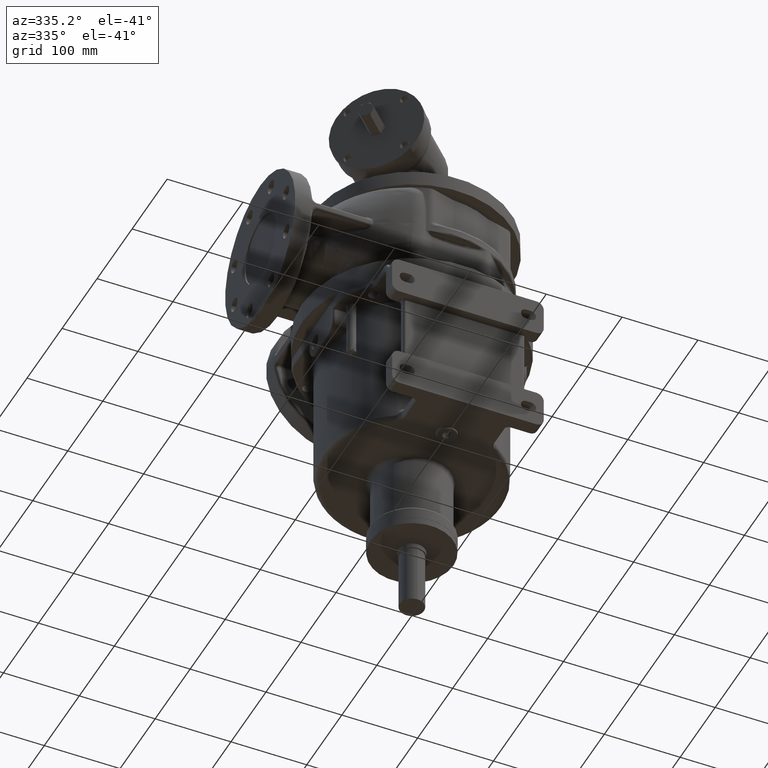
[diagram: clean part render]
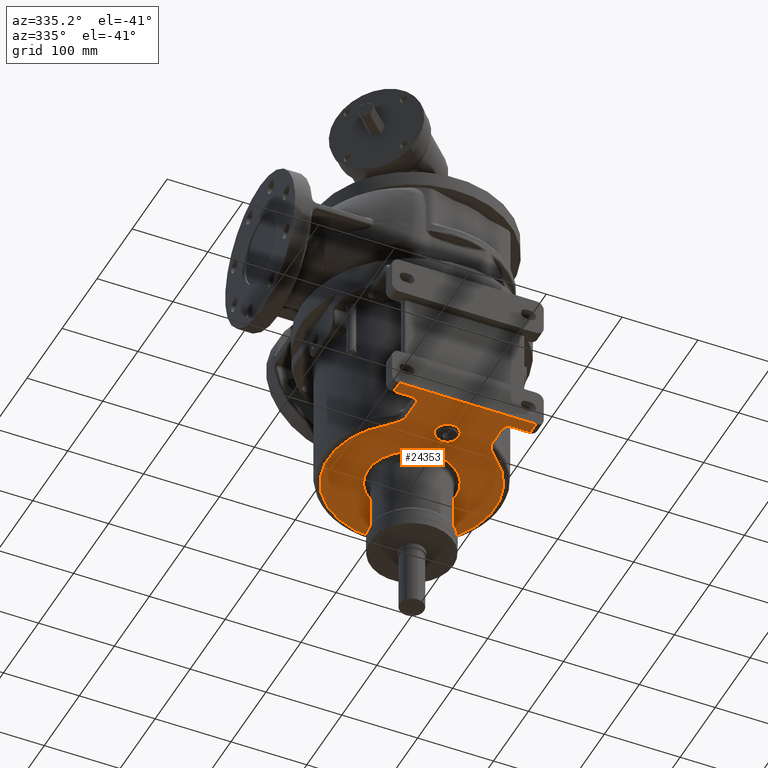
[diagram: same view with one face highlighted and labeled with its STEP entity id]
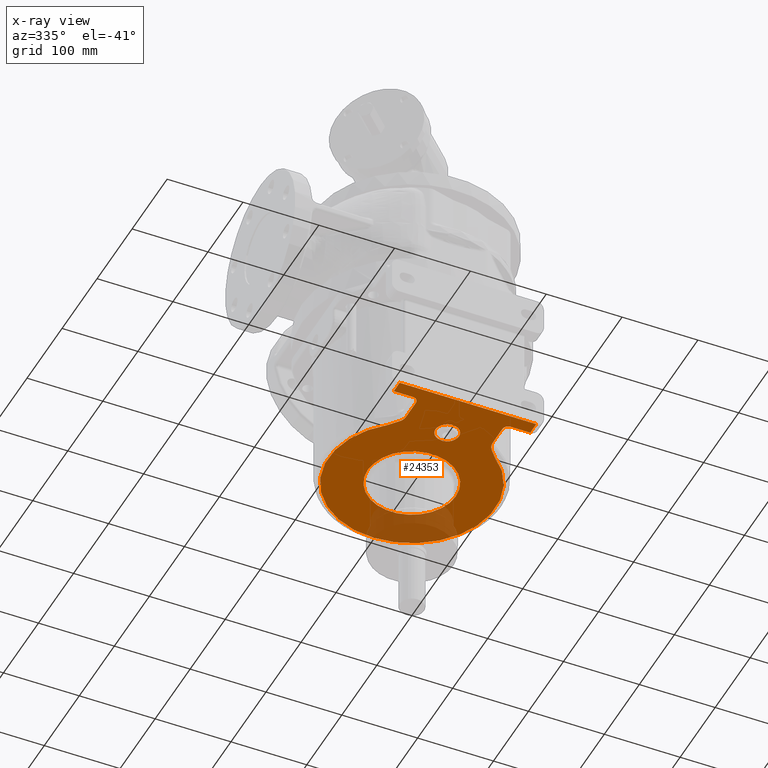
[diagram: x-ray of the same camera — body ghosted, the highlighted face saturated]
A machine part, auxiliary view. The second image highlights one B-rep face of the part: STEP entity #24353.
The next image is the same camera in x-ray: the body ghosted, the highlighted face saturated — about 16% of this face is hidden behind the body in this view.
In plain terms, the highlighted planar face has unit normal (0, 0, 1).
Its self-contained STEP definition (entity closure, byte-faithful):
#2231=DIRECTION('',(1.E0,0.E0,0.E0));
#2232=VECTOR('',#2231,1.8E2);
#2233=CARTESIAN_POINT('',(-9.E1,-1.6E2,-2.02E2));
#2234=LINE('',#2233,#2232);
#2235=DIRECTION('',(-2.423034322205E-10,1.E0,0.E0));
#2236=VECTOR('',#2235,1.7E1);
#2237=CARTESIAN_POINT('',(9.E1,-1.6E2,-2.02E2));
#2238=LINE('',#2237,#2236);
#2239=DIRECTION('',(-1.E0,1.539535787623E-10,0.E0));
#2240=VECTOR('',#2239,2.500000000194E1);
#2241=CARTESIAN_POINT('',(8.999999999588E1,-1.43E2,-2.02E2));
#2242=LINE('',#2241,#2240);
#2243=CARTESIAN_POINT('',(6.5E1,-1.35E2,-2.02E2));
#2244=DIRECTION('',(0.E0,0.E0,-1.E0));
#2245=DIRECTION('',(0.E0,-1.E0,0.E0));
#2246=AXIS2_PLACEMENT_3D('',#2243,#2244,#2245);
#2248=DIRECTION('',(3.636277230981E-6,9.999999999927E-1,-1.212321577035E-6));
#2249=VECTOR('',#2248,2.868402105599E1);
#2250=CARTESIAN_POINT('',(5.700000000442E1,-1.350000000036E2,-2.02E2));
#2251=LINE('',#2250,#2249);
#2252=CARTESIAN_POINT('',(5.700010430747E1,-1.063159789478E2,
-2.020000347743E2));
#2253=CARTESIAN_POINT('',(5.700011993886E1,-1.061453591144E2,
-2.020000335700E2));
#2254=CARTESIAN_POINT('',(5.700617352310E1,-1.058023319013E2,
-2.019999844201E2));
#2255=CARTESIAN_POINT('',(5.703364062839E1,-1.052822404566E2,
-2.020000041746E2));
#2256=CARTESIAN_POINT('',(5.707986210337E1,-1.047571623152E2,
-2.019999988814E2));
#2257=CARTESIAN_POINT('',(5.714523460756E1,-1.042275291597E2,
-2.020000002997E2));
#2258=CARTESIAN_POINT('',(5.723009956223E1,-1.036937041633E2,
-2.019999999197E2));
#2259=CARTESIAN_POINT('',(5.733480331146E1,-1.031562921447E2,
-2.020000000215E2));
#2260=CARTESIAN_POINT('',(5.745980936689E1,-1.026149629147E2,
-2.019999999942E2));
#2261=CARTESIAN_POINT('',(5.760581700418E1,-1.020688297422E2,
-2.020000000015E2));
#2262=CARTESIAN_POINT('',(5.777368037089E1,-1.015172010061E2,
-2.019999999996E2));
#2263=CARTESIAN_POINT('',(5.796442687882E1,-1.009589345012E2,
-2.020000000001E2));
#2264=CARTESIAN_POINT('',(5.817923094654E1,-1.003932822558E2,-2.02E2));
#2265=CARTESIAN_POINT('',(5.841989657052E1,-9.981795925638E1,-2.02E2));
#2266=CARTESIAN_POINT('',(5.868845266406E1,-9.923105506610E1,-2.02E2));
#2267=CARTESIAN_POINT('',(5.898794399636E1,-9.862908625308E1,-2.02E2));
#2268=CARTESIAN_POINT('',(5.932180327641E1,-9.800873562648E1,-2.02E2));
#2269=CARTESIAN_POINT('',(5.969555152827E1,-9.736381168616E1,-2.02E2));
#2270=CARTESIAN_POINT('',(6.011585776283E1,-9.668748108034E1,-2.02E2));
#2271=CARTESIAN_POINT('',(6.059504237619E1,-9.596571006542E1,-2.02E2));
#2272=CARTESIAN_POINT('',(6.114926788676E1,-9.518157213787E1,-2.02E2));
#2273=CARTESIAN_POINT('',(6.180122059410E1,-9.431200181416E1,
-2.020000000002E2));
#2274=CARTESIAN_POINT('',(6.256938027780E1,-9.334156816361E1,
-2.019999999994E2));
#2275=CARTESIAN_POINT('',(6.346629197464E1,-9.226044347160E1,
-2.020000000021E2));
#2276=CARTESIAN_POINT('',(6.449599954291E1,-9.106455592005E1,
-2.019999999921E2));
#2277=CARTESIAN_POINT('',(6.565472461914E1,-8.975173254466E1,
-2.020000000295E2));
#2278=CARTESIAN_POINT('',(6.694771363868E1,-8.830508794484E1,
-2.019999998900E2));
#2279=CARTESIAN_POINT('',(6.837528954856E1,-8.670612249582E1,
-2.020000004104E2));
#2280=CARTESIAN_POINT('',(6.944331484875E1,-8.549480547857E1,
-2.019999991158E2));
#2281=CARTESIAN_POINT('',(7.000000410274E1,-8.485280705635E1,
-2.020000004968E2));
#2283=CARTESIAN_POINT('',(-7.000002259154E1,-8.485281968794E1,
-2.020000009870E2));
#2284=CARTESIAN_POINT('',(-6.942965693859E1,-8.551003120332E1,
-2.019999723100E2));
#2285=CARTESIAN_POINT('',(-6.833978969608E1,-8.674635578249E1,
-2.020000128510E2));
#2286=CARTESIAN_POINT('',(-6.689344931588E1,-8.836557354126E1,
-2.019999965566E2));
#2287=CARTESIAN_POINT('',(-6.559764849402E1,-8.981593379553E1,
-2.020000009227E2));
#2288=CARTESIAN_POINT('',(-6.444084210241E1,-9.112761620003E1,
-2.019999997528E2));
#2289=CARTESIAN_POINT('',(-6.341555423201E1,-9.232047051287E1,
-2.020000000662E2));
#2290=CARTESIAN_POINT('',(-6.252360452966E1,-9.339807013015E1,
-2.019999999822E2));
#2291=CARTESIAN_POINT('',(-6.176004369639E1,-9.436545171514E1,
-2.020000000048E2));
#2292=CARTESIAN_POINT('',(-6.111572583416E1,-9.522774685480E1,
-2.019999999987E2));
#2293=CARTESIAN_POINT('',(-6.056788084352E1,-9.600549358539E1,
-2.020000000003E2));
#2294=CARTESIAN_POINT('',(-6.009395592453E1,-9.672169900228E1,
-2.019999999999E2));
#2295=CARTESIAN_POINT('',(-5.967691170425E1,-9.739494598834E1,-2.02E2));
#2296=CARTESIAN_POINT('',(-5.930629187301E1,-9.803661121170E1,-2.02E2));
#2297=CARTESIAN_POINT('',(-5.897501832610E1,-9.865415022135E1,-2.02E2));
#2298=CARTESIAN_POINT('',(-5.867764109854E1,-9.925379188380E1,-2.02E2));
#2299=CARTESIAN_POINT('',(-5.841090976814E1,-9.983856490038E1,-2.02E2));
#2300=CARTESIAN_POINT('',(-5.817190098521E1,-1.004117460249E2,-2.02E2));
#2301=CARTESIAN_POINT('',(-5.795852705470E1,-1.009753981333E2,
-2.020000000001E2));
#2302=CARTESIAN_POINT('',(-5.776899767105E1,-1.015318258901E2,
-2.019999999995E2));
#2303=CARTESIAN_POINT('',(-5.760217527166E1,-1.020817463420E2,
-2.020000000018E2));
#2304=CARTESIAN_POINT('',(-5.745705869644E1,-1.026262260871E2,
-2.019999999934E2));
#2305=CARTESIAN_POINT('',(-5.733279825480E1,-1.031659494440E2,
-2.020000000245E2));
#2306=CARTESIAN_POINT('',(-5.722870711080E1,-1.037019084496E2,
-2.019999999085E2));
#2307=CARTESIAN_POINT('',(-5.714435304909E1,-1.042341576888E2,
-2.020000003413E2));
#2308=CARTESIAN_POINT('',(-5.707938453652E1,-1.047621592307E2,
-2.019999987261E2));
#2309=CARTESIAN_POINT('',(-5.703345374649E1,-1.052855669825E2,
-2.020000047544E2));
#2310=CARTESIAN_POINT('',(-5.700615417250E1,-1.058039624815E2,
-2.019999822565E2));
#2311=CARTESIAN_POINT('',(-5.700013492407E1,-1.061458707037E2,
-2.020000382319E2));
#2312=CARTESIAN_POINT('',(-5.700011809330E1,-1.063159315612E2,
-2.020000393654E2));
#2314=DIRECTION('',(4.116880560959E-6,-9.999999999906E-1,1.372378926441E-6));
#2315=VECTOR('',#2314,2.868406844267E1);
#2316=CARTESIAN_POINT('',(-5.700011809330E1,-1.063159315612E2,
-2.020000393654E2));
#2317=LINE('',#2316,#2315);
#2318=CARTESIAN_POINT('',(-6.5E1,-1.35E2,-2.02E2));
#2319=DIRECTION('',(0.E0,0.E0,-1.E0));
#2320=DIRECTION('',(1.E0,0.E0,0.E0));
#2321=AXIS2_PLACEMENT_3D('',#2318,#2319,#2320);
#2323=DIRECTION('',(-1.E0,-1.539956429233E-10,0.E0));
#2324=VECTOR('',#2323,2.499999999689E1);
#2325=CARTESIAN_POINT('',(-6.499999999394E1,-1.429999999962E2,-2.02E2));
#2326=LINE('',#2325,#2324);
#2327=DIRECTION('',(5.394783182269E-10,1.E0,0.E0));
#2328=VECTOR('',#2327,1.7E1);
#2329=CARTESIAN_POINT('',(-9.E1,-1.6E2,-2.02E2));
#2330=LINE('',#2329,#2328);
#2331=CARTESIAN_POINT('',(0.E0,-2.473785534278E-14,-2.02E2));
#2332=DIRECTION('',(0.E0,0.E0,1.E0));
#2333=DIRECTION('',(-1.E0,0.E0,0.E0));
#2334=AXIS2_PLACEMENT_3D('',#2331,#2332,#2333);
#2336=CARTESIAN_POINT('',(0.E0,-2.473785534278E-14,-2.02E2));
#2337=DIRECTION('',(0.E0,0.E0,1.E0));
#2338=DIRECTION('',(1.E0,0.E0,0.E0));
#2339=AXIS2_PLACEMENT_3D('',#2336,#2337,#2338);
#2341=CARTESIAN_POINT('',(0.E0,-1.01E2,-2.02E2));
#2342=DIRECTION('',(0.E0,0.E0,-1.E0));
#2343=DIRECTION('',(1.E0,0.E0,0.E0));
#2344=AXIS2_PLACEMENT_3D('',#2341,#2342,#2343);
#2346=CARTESIAN_POINT('',(0.E0,-1.01E2,-2.02E2));
#2347=DIRECTION('',(0.E0,0.E0,-1.E0));
#2348=DIRECTION('',(-1.E0,0.E0,0.E0));
#2349=AXIS2_PLACEMENT_3D('',#2346,#2347,#2348);
#18781=CARTESIAN_POINT('',(-7.000002259154E1,-8.485281968794E1,
-2.020000009870E2));
#18869=CARTESIAN_POINT('',(0.E0,-2.473785534278E-14,-2.02E2));
#18870=DIRECTION('',(0.E0,0.E0,-1.E0));
#18871=DIRECTION('',(-6.363645381818E-1,-7.713884718770E-1,0.E0));
#18872=AXIS2_PLACEMENT_3D('',#18869,#18870,#18871);
#20059=CARTESIAN_POINT('',(1.55E1,-1.01E2,-2.02E2));
#20060=CARTESIAN_POINT('',(-1.55E1,-1.01E2,-2.02E2));
#20061=VERTEX_POINT('',#20059);
#20062=VERTEX_POINT('',#20060);
#20119=CARTESIAN_POINT('',(-5.8E1,-3.184080677783E-14,-2.02E2));
#20120=CARTESIAN_POINT('',(5.8E1,-2.473785534278E-14,-2.02E2));
#20121=VERTEX_POINT('',#20119);
#20122=VERTEX_POINT('',#20120);
#20218=VERTEX_POINT('',#2252);
#20219=VERTEX_POINT('',#2281);
#20223=CARTESIAN_POINT('',(5.700000000442E1,-1.350000000036E2,-2.02E2));
#20224=VERTEX_POINT('',#20223);
#20227=CARTESIAN_POINT('',(6.5E1,-1.43E2,-2.02E2));
#20228=VERTEX_POINT('',#20227);
#20231=CARTESIAN_POINT('',(8.999999999588E1,-1.43E2,-2.02E2));
#20232=VERTEX_POINT('',#20231);
#20435=CARTESIAN_POINT('',(-9.E1,-1.43E2,-2.02E2));
#20436=VERTEX_POINT('',#20435);
#20439=CARTESIAN_POINT('',(-6.499999999394E1,-1.429999999962E2,-2.02E2));
#20440=VERTEX_POINT('',#20439);
#20443=CARTESIAN_POINT('',(-5.7E1,-1.35E2,-2.02E2));
#20444=VERTEX_POINT('',#20443);
#20447=CARTESIAN_POINT('',(-5.700011809330E1,-1.063159315612E2,
-2.020000393654E2));
#20448=VERTEX_POINT('',#20447);
#20449=VERTEX_POINT('',#18781);
#20523=CARTESIAN_POINT('',(-9.E1,-1.6E2,-2.02E2));
#20524=CARTESIAN_POINT('',(9.E1,-1.6E2,-2.02E2));
#20525=VERTEX_POINT('',#20523);
#20526=VERTEX_POINT('',#20524);
#24311=CARTESIAN_POINT('',(0.E0,-2.473785534278E-14,-2.02E2));
#24312=DIRECTION('',(0.E0,0.E0,1.E0));
#24313=DIRECTION('',(1.E0,0.E0,0.E0));
#24314=AXIS2_PLACEMENT_3D('',#24311,#24312,#24313);
#24315=PLANE('',#24314);
#24317=ORIENTED_EDGE('',*,*,#24316,.T.);
#24319=ORIENTED_EDGE('',*,*,#24318,.T.);
#24321=ORIENTED_EDGE('',*,*,#24320,.T.);
#24323=ORIENTED_EDGE('',*,*,#24322,.T.);
#24325=ORIENTED_EDGE('',*,*,#24324,.T.);
#24326=ORIENTED_EDGE('',*,*,#24303,.T.);
#24328=ORIENTED_EDGE('',*,*,#24327,.F.);
#24330=ORIENTED_EDGE('',*,*,#24329,.T.);
#24332=ORIENTED_EDGE('',*,*,#24331,.T.);
#24334=ORIENTED_EDGE('',*,*,#24333,.T.);
#24336=ORIENTED_EDGE('',*,*,#24335,.T.);
#24338=ORIENTED_EDGE('',*,*,#24337,.F.);
#24339=EDGE_LOOP('',(#24317,#24319,#24321,#24323,#24325,#24326,#24328,#24330,
#24332,#24334,#24336,#24338));
#24340=FACE_OUTER_BOUND('',#24339,.F.);
#24342=ORIENTED_EDGE('',*,*,#24341,.F.);
#24344=ORIENTED_EDGE('',*,*,#24343,.F.);
#24345=EDGE_LOOP('',(#24342,#24344));
#24346=FACE_BOUND('',#24345,.F.);
#24348=ORIENTED_EDGE('',*,*,#24347,.T.);
#24350=ORIENTED_EDGE('',*,*,#24349,.T.);
#24351=EDGE_LOOP('',(#24348,#24350));
#24352=FACE_BOUND('',#24351,.F.);
#24353=ADVANCED_FACE('',(#24340,#24346,#24352),#24315,.F.);
#2247=CIRCLE('',#2246,8.E0);
#2282=B_SPLINE_CURVE_WITH_KNOTS('',3,(#2252,#2253,#2254,#2255,#2256,#2257,#2258,
#2259,#2260,#2261,#2262,#2263,#2264,#2265,#2266,#2267,#2268,#2269,#2270,#2271,
#2272,#2273,#2274,#2275,#2276,#2277,#2278,#2279,#2280,#2281),.UNSPECIFIED.,.F.,
.F.,(4,1,1,1,1,1,1,1,1,1,1,1,1,1,1,1,1,1,1,1,1,1,1,1,1,1,1,4),(0.E0,
3.703703703704E-2,7.407407407407E-2,1.111111111111E-1,1.481481481481E-1,
1.851851851852E-1,2.222222222222E-1,2.592592592593E-1,2.962962962963E-1,
3.333333333333E-1,3.703703703704E-1,4.074074074074E-1,4.444444444444E-1,
4.814814814815E-1,5.185185185185E-1,5.555555555556E-1,5.925925925926E-1,
6.296296296296E-1,6.666666666667E-1,7.037037037037E-1,7.407407407407E-1,
7.777777777778E-1,8.148148148148E-1,8.518518518519E-1,8.888888888889E-1,
9.259259259259E-1,9.629629629630E-1,1.E0),.UNSPECIFIED.);
#2313=B_SPLINE_CURVE_WITH_KNOTS('',3,(#2283,#2284,#2285,#2286,#2287,#2288,#2289,
#2290,#2291,#2292,#2293,#2294,#2295,#2296,#2297,#2298,#2299,#2300,#2301,#2302,
#2303,#2304,#2305,#2306,#2307,#2308,#2309,#2310,#2311,#2312),.UNSPECIFIED.,.F.,
.F.,(4,1,1,1,1,1,1,1,1,1,1,1,1,1,1,1,1,1,1,1,1,1,1,1,1,1,1,4),(0.E0,
3.703703703704E-2,7.407407407407E-2,1.111111111111E-1,1.481481481481E-1,
1.851851851852E-1,2.222222222222E-1,2.592592592593E-1,2.962962962963E-1,
3.333333333333E-1,3.703703703704E-1,4.074074074074E-1,4.444444444444E-1,
4.814814814815E-1,5.185185185185E-1,5.555555555556E-1,5.925925925926E-1,
6.296296296296E-1,6.666666666667E-1,7.037037037037E-1,7.407407407407E-1,
7.777777777778E-1,8.148148148148E-1,8.518518518519E-1,8.888888888889E-1,
9.259259259259E-1,9.629629629630E-1,1.E0),.UNSPECIFIED.);
#2322=CIRCLE('',#2321,8.E0);
#2335=CIRCLE('',#2334,5.8E1);
#2340=CIRCLE('',#2339,5.8E1);
#2345=CIRCLE('',#2344,1.55E1);
#2350=CIRCLE('',#2349,1.55E1);
#18873=CIRCLE('',#18872,1.1E2);
#24303=EDGE_CURVE('',#20218,#20219,#2282,.T.);
#24316=EDGE_CURVE('',#20525,#20526,#2234,.T.);
#24318=EDGE_CURVE('',#20526,#20232,#2238,.T.);
#24320=EDGE_CURVE('',#20232,#20228,#2242,.T.);
#24322=EDGE_CURVE('',#20228,#20224,#2247,.T.);
#24324=EDGE_CURVE('',#20224,#20218,#2251,.T.);
#24327=EDGE_CURVE('',#20449,#20219,#18873,.T.);
#24329=EDGE_CURVE('',#20449,#20448,#2313,.T.);
#24331=EDGE_CURVE('',#20448,#20444,#2317,.T.);
#24333=EDGE_CURVE('',#20444,#20440,#2322,.T.);
#24335=EDGE_CURVE('',#20440,#20436,#2326,.T.);
#24337=EDGE_CURVE('',#20525,#20436,#2330,.T.);
#24341=EDGE_CURVE('',#20121,#20122,#2335,.T.);
#24343=EDGE_CURVE('',#20122,#20121,#2340,.T.);
#24347=EDGE_CURVE('',#20061,#20062,#2345,.T.);
#24349=EDGE_CURVE('',#20062,#20061,#2350,.T.);